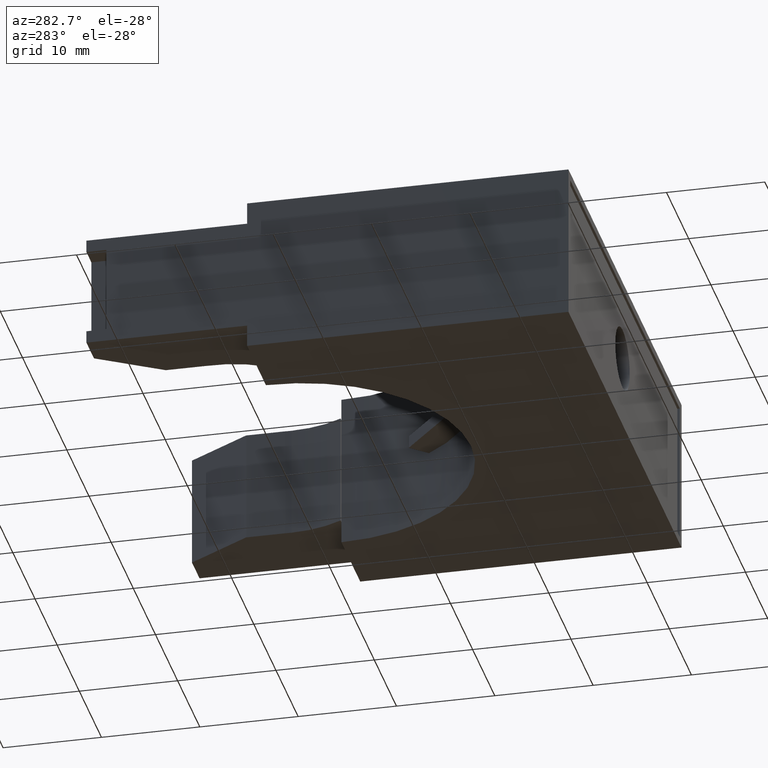
[diagram: clean part render]
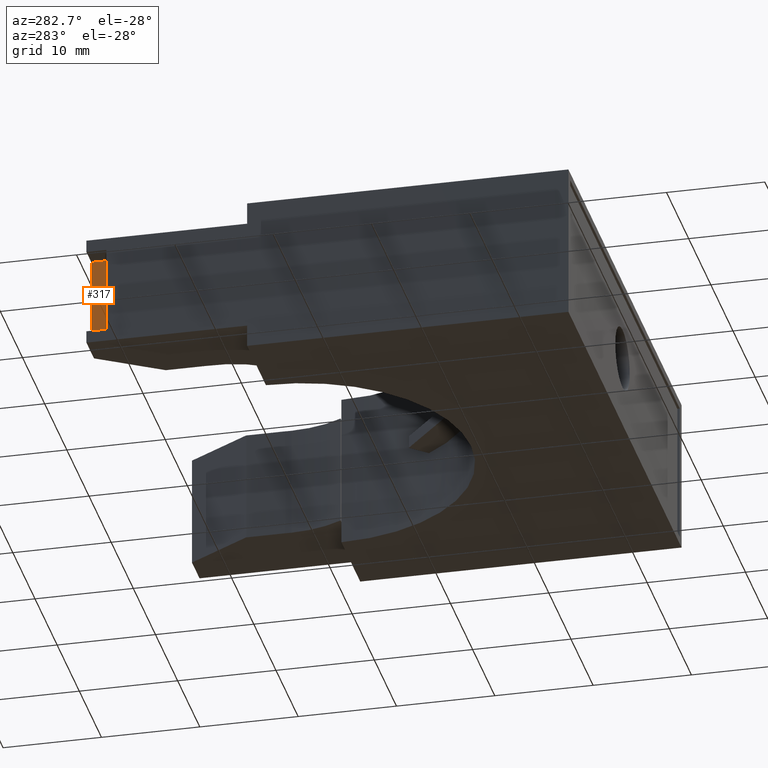
[diagram: same view with one face highlighted and labeled with its STEP entity id]
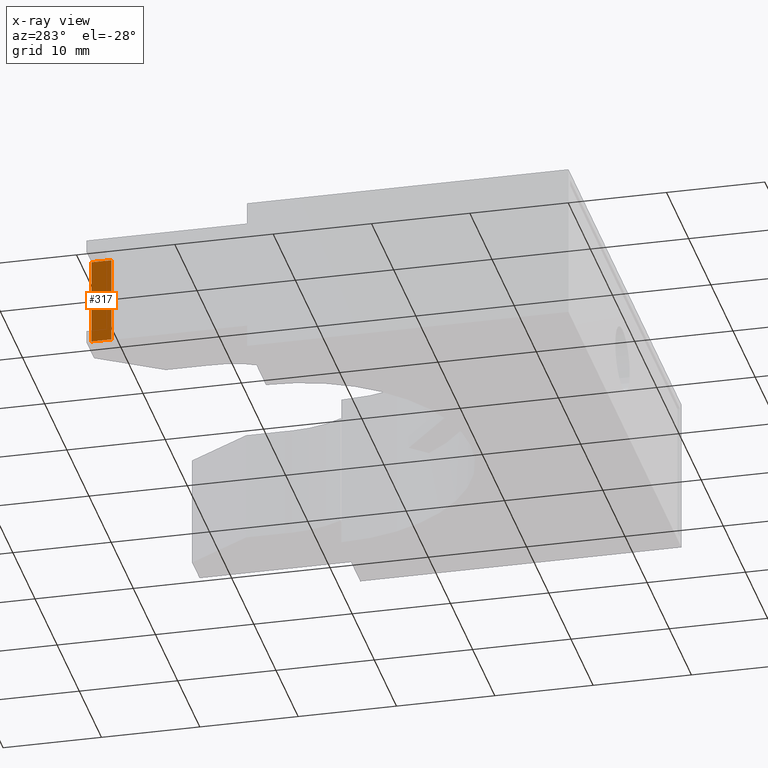
[diagram: x-ray of the same camera — body ghosted, the highlighted face saturated]
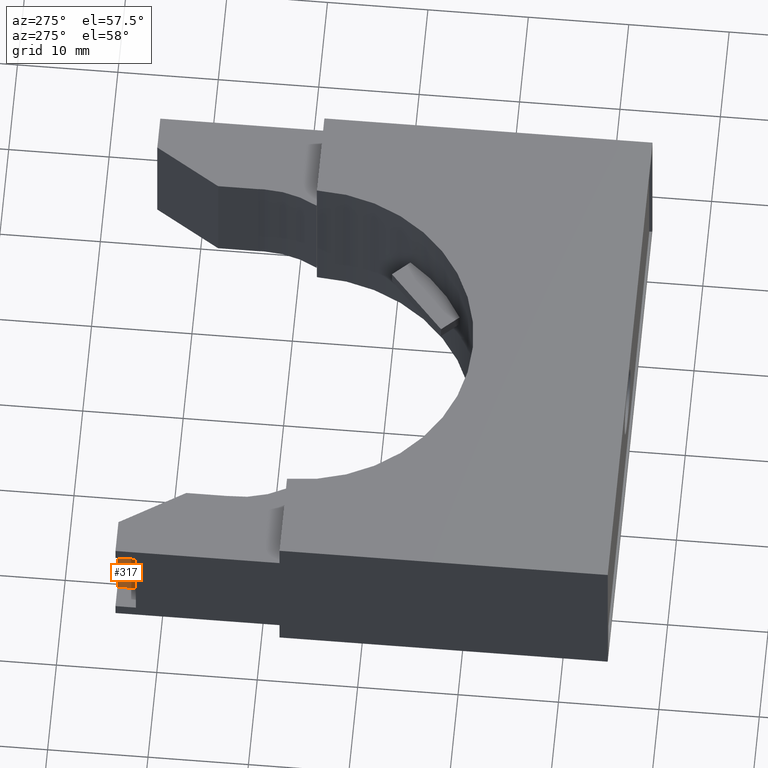
[diagram: same view with one face highlighted and labeled with its STEP entity id]
A machine part, auxiliary view. The second image highlights one B-rep face of the part: STEP entity #317.
The next image is the same camera in x-ray: the body ghosted, the highlighted face saturated — about 0% of this face is hidden behind the body in this view.
A second angle (auxiliary view) of the same face is appended — the face is thin or edge-on in the first view.
In plain terms, the highlighted planar face has unit normal (1, 0, 0).
Its self-contained STEP definition (entity closure, byte-faithful):
#162 = EDGE_CURVE ( 'NONE', #163, #184, #865, .T. ) ;
#163 = VERTEX_POINT ( 'NONE', #861 ) ;
#184 = VERTEX_POINT ( 'NONE', #1086 ) ;
#316 = EDGE_CURVE ( 'NONE', #614, #184, #1202, .T. ) ;
#317 = ADVANCED_FACE ( 'NONE', ( #1203 ), #1263, .F. ) ;
#318 = ORIENTED_EDGE ( 'NONE', *, *, #162, .T. ) ;
#319 = ORIENTED_EDGE ( 'NONE', *, *, #316, .F. ) ;
#320 = ORIENTED_EDGE ( 'NONE', *, *, #321, .F. ) ;
#321 = EDGE_CURVE ( 'NONE', #402, #614, #1261, .T. ) ;
#402 = VERTEX_POINT ( 'NONE', #1231 ) ;
#403 = ORIENTED_EDGE ( 'NONE', *, *, #404, .T. ) ;
#404 = EDGE_CURVE ( 'NONE', #402, #163, #1230, .T. ) ;
#614 = VERTEX_POINT ( 'NONE', #1410 ) ;
#615 = EDGE_LOOP ( 'NONE', ( #318, #319, #320, #403 ) ) ;
#861 = CARTESIAN_POINT ( 'NONE',  ( -0.9169931325000001400, 0.9650000000000000800, 0.4902249999999999100 ) ) ;
#862 = DIRECTION ( 'NONE',  ( 1.559051501591818600E-015, -0.0000000000000000000, -1.000000000000000000 ) ) ;
#863 = VECTOR ( 'NONE', #862, 39.37007874015748100 ) ;
#864 = CARTESIAN_POINT ( 'NONE',  ( -0.9169931324999997000, 0.9650000000000000800, 0.1397750000000000900 ) ) ;
#865 = LINE ( 'NONE', #864, #863 ) ;
#1086 = CARTESIAN_POINT ( 'NONE',  ( -0.9169931324999997000, 0.9650000000000000800, 0.1397750000000000900 ) ) ;
#1200 = CARTESIAN_POINT ( 'NONE',  ( -0.9169931324999997000, 0.8850000000000001200, 0.1397750000000000900 ) ) ;
#1202 = LINE ( 'NONE', #1200, #1205 ) ;
#1203 = FACE_OUTER_BOUND ( 'NONE', #615, .T. ) ;
#1204 = DIRECTION ( 'NONE',  ( -0.0000000000000000000, 1.000000000000000000, -0.0000000000000000000 ) ) ;
#1205 = VECTOR ( 'NONE', #1204, 39.37007874015748100 ) ;
#1212 = DIRECTION ( 'NONE',  ( 1.559051501591818600E-015, 0.0000000000000000000, -1.000000000000000000 ) ) ;
#1213 = DIRECTION ( 'NONE',  ( 1.000000000000000000, 0.0000000000000000000, 1.559051501591818600E-015 ) ) ;
#1214 = AXIS2_PLACEMENT_3D ( 'NONE', #1262, #1213, #1212 ) ;
#1227 = DIRECTION ( 'NONE',  ( -0.0000000000000000000, 1.000000000000000000, -0.0000000000000000000 ) ) ;
#1228 = VECTOR ( 'NONE', #1227, 39.37007874015748100 ) ;
#1229 = CARTESIAN_POINT ( 'NONE',  ( -0.9169931325000001400, 0.8850000000000001200, 0.4902249999999999100 ) ) ;
#1230 = LINE ( 'NONE', #1229, #1228 ) ;
#1231 = CARTESIAN_POINT ( 'NONE',  ( -0.9169931325000001400, 0.8850000000000001200, 0.4902249999999999100 ) ) ;
#1259 = VECTOR ( 'NONE', #1264, 39.37007874015748100 ) ;
#1260 = CARTESIAN_POINT ( 'NONE',  ( -0.9169931324999997000, 0.8850000000000001200, 0.1397750000000000900 ) ) ;
#1261 = LINE ( 'NONE', #1260, #1259 ) ;
#1262 = CARTESIAN_POINT ( 'NONE',  ( -0.9169931324999997000, 0.8850000000000001200, 0.1397750000000000900 ) ) ;
#1263 = PLANE ( 'NONE',  #1214 ) ;
#1264 = DIRECTION ( 'NONE',  ( 1.559051501591818600E-015, -0.0000000000000000000, -1.000000000000000000 ) ) ;
#1410 = CARTESIAN_POINT ( 'NONE',  ( -0.9169931324999997000, 0.8850000000000001200, 0.1397750000000000900 ) ) ;